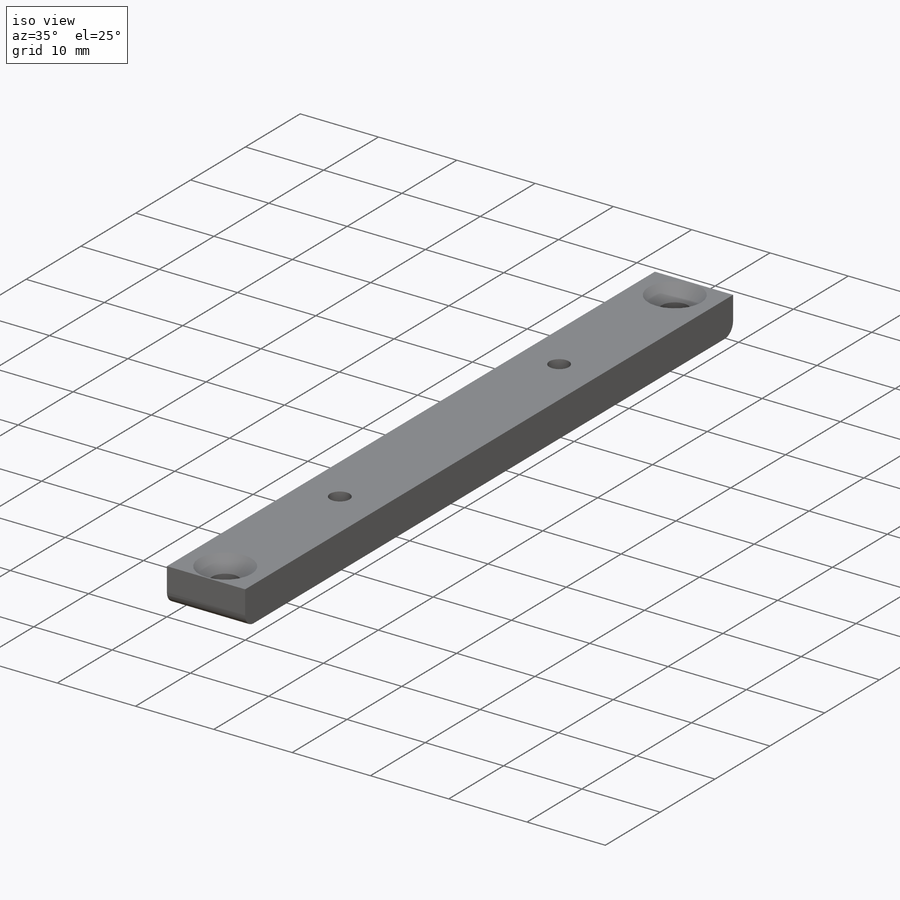
[diagram: iso view]
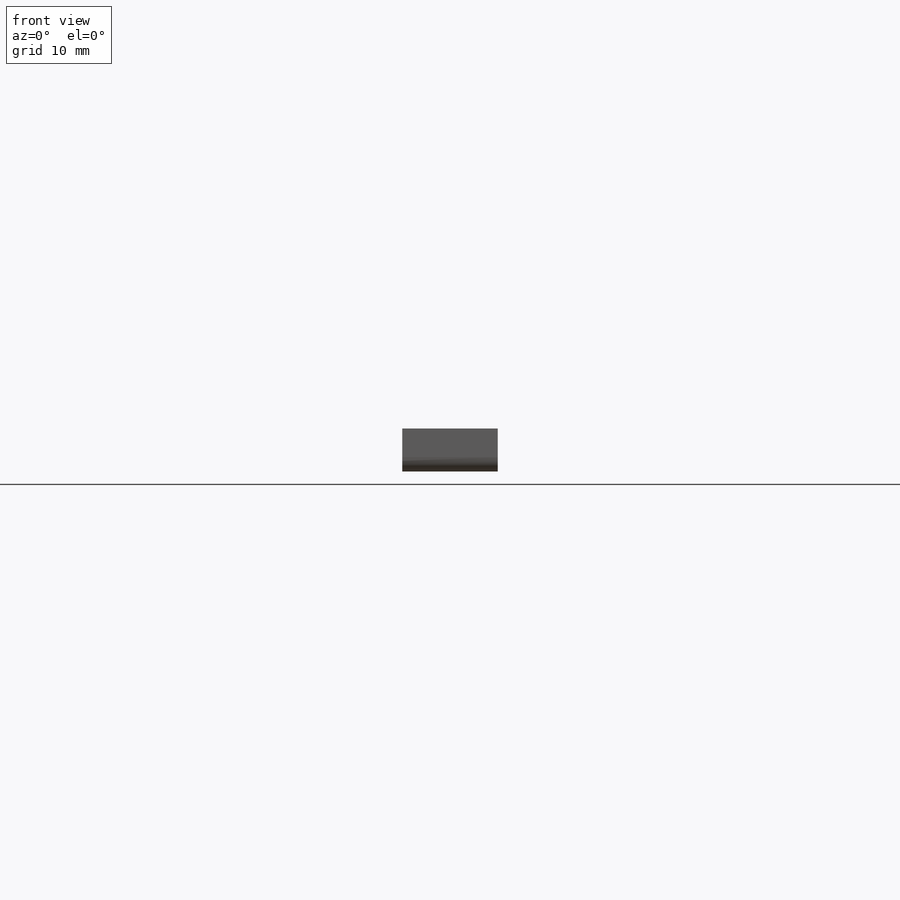
[diagram: front view]
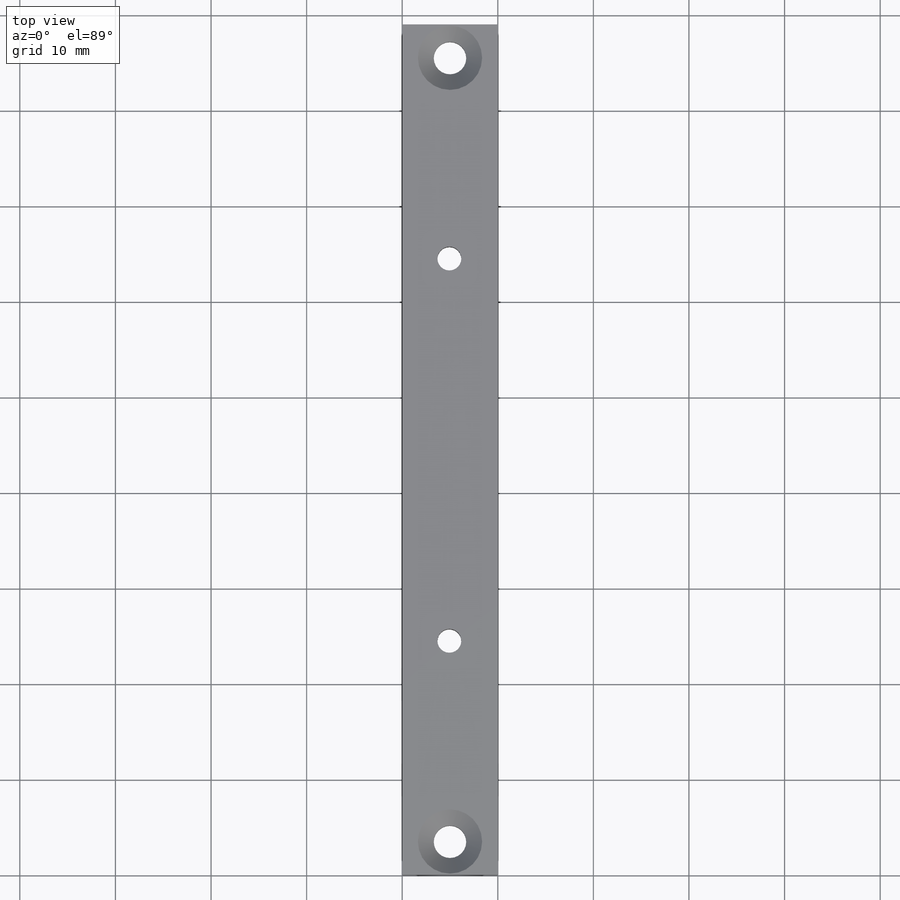
[diagram: top view]
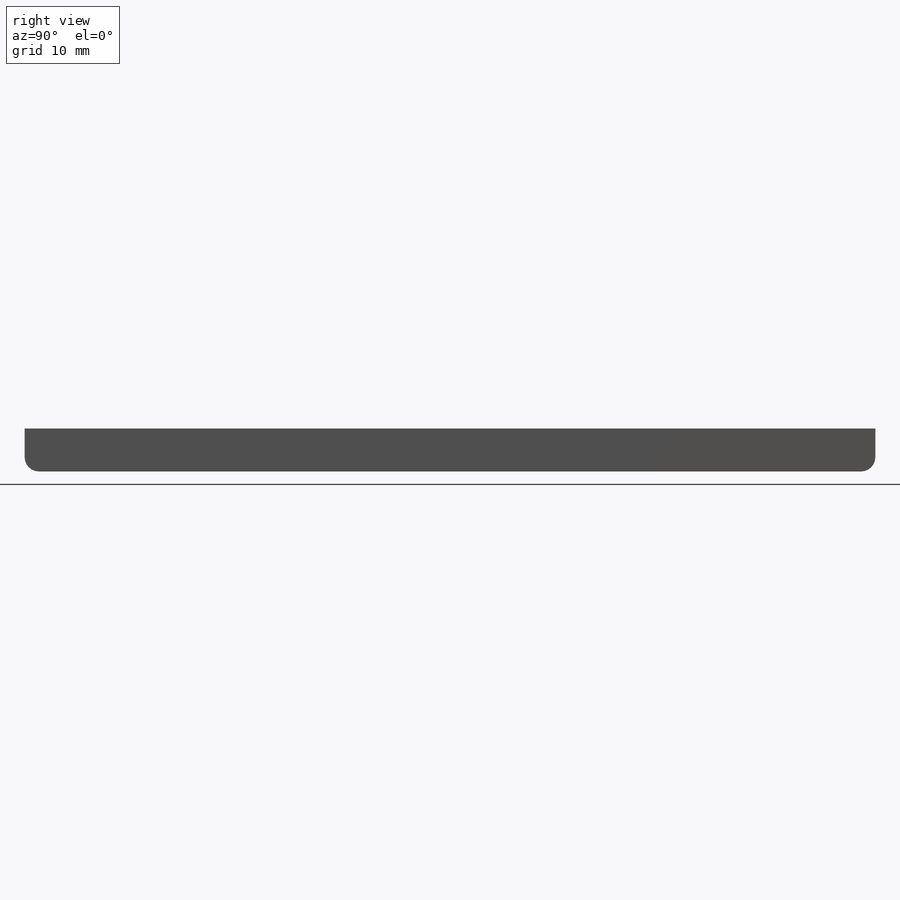
[diagram: right view]
SOLIDWORKS PART (.sldprt)
format: sldprt  version: not decoded by parser v0  size: 211,968 bytes
history: native  units: mm
features: sketch x5, hole x2, thread x2, material x1, extrude x1, fillet x1 (+12 scaffold rows collapsed)
feature tree (24):
  scaffold x12  (default folders/planes/origin — collapsed)
  material  "7050-T73510"
  sketch  "Sketch1"  dims[D1=89.0mm D2=4.5mm]
  extrude  "Boss-Extrude1"  Depth=10mm
  fillet  "Fillet1"  Radius=1.5mm
  hole  "CSK for M3 Hex Socket Countersunk Cap Screw1"  Diameter=3.4mm Depth=4.5mm
  sketch  "Sketch3"  dims[D1=5.0mm D2=3.5mm D3=3.5mm]
  sketch  "Sketch2"  dims[hole-wizard template sketch: 55 standard entries collapsed; hole parameters kept: c17.Thru Hole Depth=4.5mm c17.Near C'Sink Dia.=6.72mm c17.D4=~3.666174mm c17.Near C'Sink Angle=90.0deg]
  hole  "M3 Tapped Hole1"  Diameter=2.5mm Depth=7.5mm
  sketch  "Sketch5"  dims[D1=40.0mm D2=24.5mm D3=27.0mm]
  sketch  "Sketch4"  dims[hole-wizard template sketch: 50 standard entries collapsed; hole parameters above]
  thread  "Hole Thread1"  Diameter=4.5mm  [1 undecoded]
  thread  "Hole Thread2"  Diameter=4.5mm  [1 undecoded]
decode coverage: 11 of 11 modeling features carry decoded parameters
note: ~ marks probable driven/reference dimensions
note: 2 parameter values undecoded
note: suppression state not decoded; provenance and decode notes live in map.json
